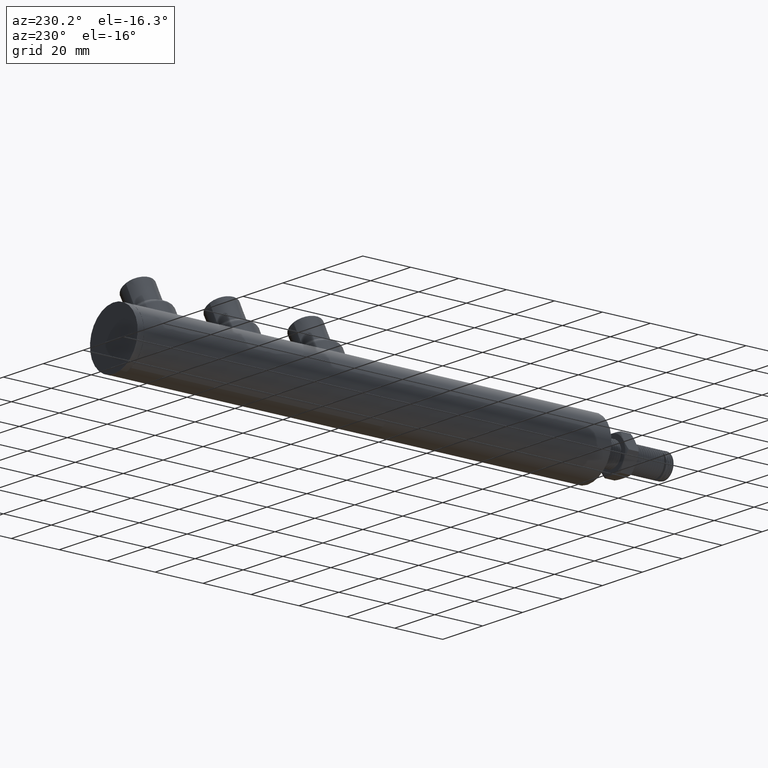
[diagram: clean part render]
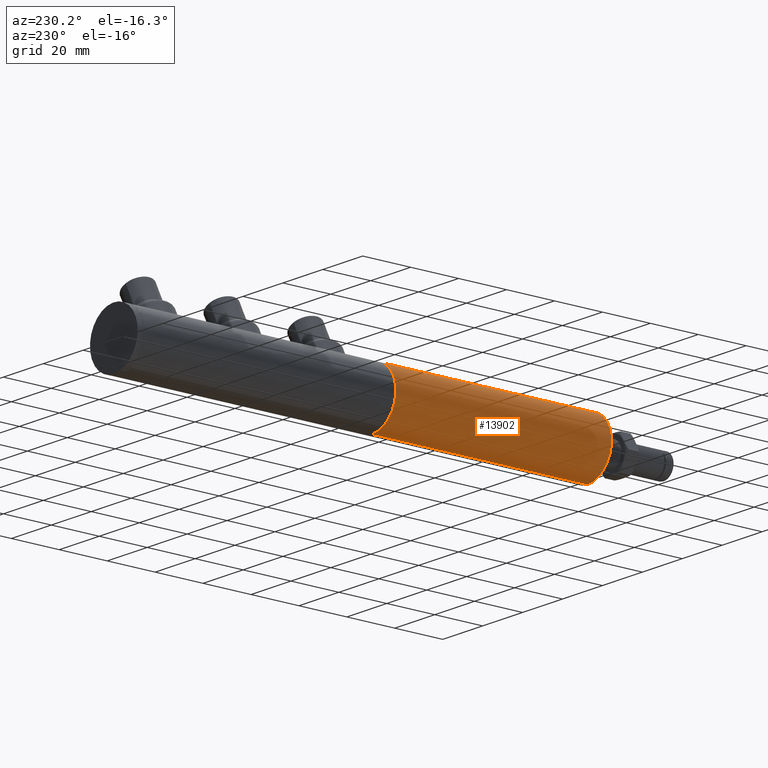
[diagram: same view with one face highlighted and labeled with its STEP entity id]
A machine part, auxiliary view. The second image highlights one B-rep face of the part: STEP entity #13902.
In plain terms, the highlighted cylindrical surface (partial cylindrical patch) has radius 12 mm, axis along (-0, -1, -0).
Its self-contained STEP definition (entity closure, byte-faithful):
#1632 = CARTESIAN_POINT ( 'NONE',  ( 0.000000000000000000, 90.00000000000000000, -11.99999999999999822 ) ) ;
#1773 = CARTESIAN_POINT ( 'NONE',  ( 1.469576158976823356E-15, 90.00000000000000000, 11.99999999999999822 ) ) ;
#3228 = CIRCLE ( 'NONE', #22392, 11.99999999999999822 ) ;
#3705 = AXIS2_PLACEMENT_3D ( 'NONE', #15525, #22850, #19138 ) ;
#3938 = FACE_OUTER_BOUND ( 'NONE', #13133, .T. ) ;
#3976 = EDGE_CURVE ( 'NONE', #17228, #20987, #22982, .T. ) ;
#4862 = CARTESIAN_POINT ( 'NONE',  ( 0.000000000000000000, 0.000000000000000000, -11.99999999999999822 ) ) ;
#5365 = EDGE_CURVE ( 'NONE', #17228, #12006, #8875, .T. ) ;
#7505 = ORIENTED_EDGE ( 'NONE', *, *, #5365, .F. ) ;
#7546 = DIRECTION ( 'NONE',  ( -0.000000000000000000, -1.000000000000000000, -0.000000000000000000 ) ) ;
#7661 = CARTESIAN_POINT ( 'NONE',  ( 1.469576158976823356E-15, 0.000000000000000000, 11.99999999999999822 ) ) ;
#8875 = CIRCLE ( 'NONE', #13228, 11.99999999999999822 ) ;
#8996 = LINE ( 'NONE', #18421, #13208 ) ;
#9267 = CARTESIAN_POINT ( 'NONE',  ( 0.000000000000000000, 90.00000000000000000, 0.000000000000000000 ) ) ;
#10816 = EDGE_CURVE ( 'NONE', #12006, #22436, #8996, .T. ) ;
#11113 = VECTOR ( 'NONE', #12406, 1000.000000000000000 ) ;
#12006 = VERTEX_POINT ( 'NONE', #1773 ) ;
#12406 = DIRECTION ( 'NONE',  ( -0.000000000000000000, -1.000000000000000000, -0.000000000000000000 ) ) ;
#13052 = DIRECTION ( 'NONE',  ( 0.000000000000000000, 0.000000000000000000, 1.000000000000000000 ) ) ;
#13133 = EDGE_LOOP ( 'NONE', ( #19951, #7505, #19556, #15235 ) ) ;
#13208 = VECTOR ( 'NONE', #7546, 1000.000000000000000 ) ;
#13228 = AXIS2_PLACEMENT_3D ( 'NONE', #9267, #14789, #13052 ) ;
#13902 = ADVANCED_FACE ( 'NONE', ( #3938 ), #15693, .T. ) ;
#14231 = CARTESIAN_POINT ( 'NONE',  ( 0.000000000000000000, 0.000000000000000000, 0.000000000000000000 ) ) ;
#14789 = DIRECTION ( 'NONE',  ( 0.000000000000000000, 1.000000000000000000, 0.000000000000000000 ) ) ;
#15235 = ORIENTED_EDGE ( 'NONE', *, *, #19169, .T. ) ;
#15525 = CARTESIAN_POINT ( 'NONE',  ( 0.000000000000000000, 90.00000000000000000, 0.000000000000000000 ) ) ;
#15693 = CYLINDRICAL_SURFACE ( 'NONE', #3705, 11.99999999999999822 ) ;
#16273 = CARTESIAN_POINT ( 'NONE',  ( 0.000000000000000000, 90.00000000000000000, -11.99999999999999822 ) ) ;
#17228 = VERTEX_POINT ( 'NONE', #16273 ) ;
#17823 = DIRECTION ( 'NONE',  ( 0.000000000000000000, 1.000000000000000000, 0.000000000000000000 ) ) ;
#18421 = CARTESIAN_POINT ( 'NONE',  ( 1.469576158976823356E-15, 90.00000000000000000, 11.99999999999999822 ) ) ;
#19138 = DIRECTION ( 'NONE',  ( 0.000000000000000000, 0.000000000000000000, -1.000000000000000000 ) ) ;
#19169 = EDGE_CURVE ( 'NONE', #20987, #22436, #3228, .T. ) ;
#19556 = ORIENTED_EDGE ( 'NONE', *, *, #3976, .T. ) ;
#19951 = ORIENTED_EDGE ( 'NONE', *, *, #10816, .F. ) ;
#20987 = VERTEX_POINT ( 'NONE', #4862 ) ;
#21379 = DIRECTION ( 'NONE',  ( 0.000000000000000000, 0.000000000000000000, 1.000000000000000000 ) ) ;
#22392 = AXIS2_PLACEMENT_3D ( 'NONE', #14231, #17823, #21379 ) ;
#22436 = VERTEX_POINT ( 'NONE', #7661 ) ;
#22850 = DIRECTION ( 'NONE',  ( -0.000000000000000000, -1.000000000000000000, -0.000000000000000000 ) ) ;
#22982 = LINE ( 'NONE', #1632, #11113 ) ;